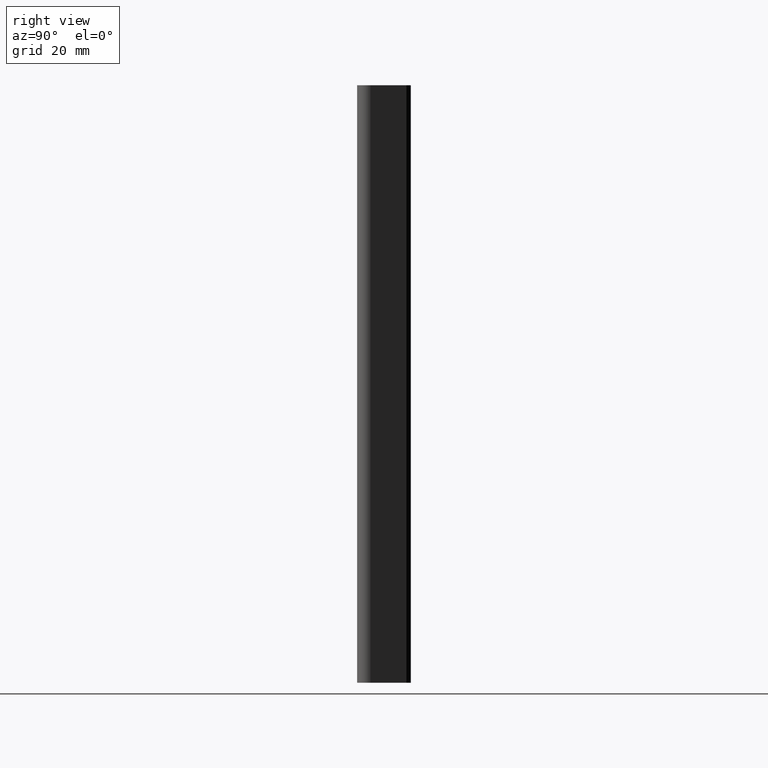
[diagram: clean part render]
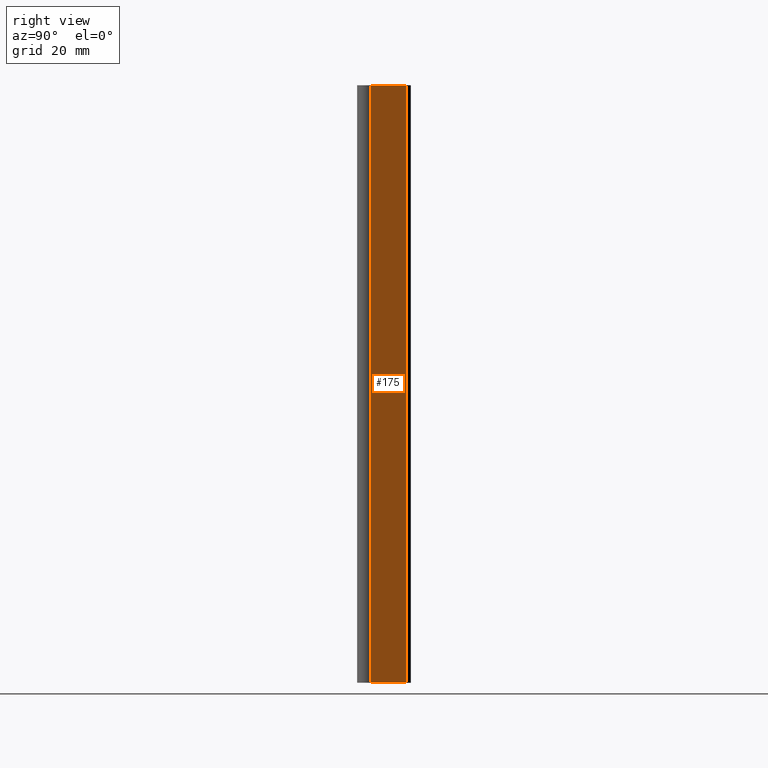
[diagram: same view with one face highlighted and labeled with its STEP entity id]
A machine part, right view. The second image highlights one B-rep face of the part: STEP entity #175.
In plain terms, the highlighted planar face has unit normal (0.866, 0.5, 0).
Its self-contained STEP definition (entity closure, byte-faithful):
#29=FACE_OUTER_BOUND('',#39,.T.);
#39=EDGE_LOOP('',(#127,#128,#129,#130));
#51=LINE('',#284,#67);
#52=LINE('',#287,#68);
#53=LINE('',#289,#69);
#54=LINE('',#290,#70);
#67=VECTOR('',#229,10.);
#68=VECTOR('',#232,10.);
#69=VECTOR('',#233,10.);
#70=VECTOR('',#234,10.);
#83=VERTEX_POINT('',#280);
#84=VERTEX_POINT('',#282);
#85=VERTEX_POINT('',#286);
#86=VERTEX_POINT('',#288);
#101=EDGE_CURVE('',#83,#84,#51,.T.);
#102=EDGE_CURVE('',#85,#83,#52,.T.);
#103=EDGE_CURVE('',#86,#84,#53,.T.);
#104=EDGE_CURVE('',#85,#86,#54,.T.);
#127=ORIENTED_EDGE('',*,*,#102,.T.);
#128=ORIENTED_EDGE('',*,*,#101,.T.);
#129=ORIENTED_EDGE('',*,*,#103,.F.);
#130=ORIENTED_EDGE('',*,*,#104,.F.);
#168=PLANE('',#201);
#175=ADVANCED_FACE('',(#29),#168,.T.);
#201=AXIS2_PLACEMENT_3D('',#285,#230,#231);
#229=DIRECTION('',(0.,0.,1.));
#230=DIRECTION('center_axis',(0.866025402866325,0.500000001590219,0.));
#231=DIRECTION('ref_axis',(-0.500000001590219,0.866025402866325,0.));
#232=DIRECTION('',(-0.500000001590219,0.866025402866325,0.));
#233=DIRECTION('',(-0.500000001590219,0.866025402866325,0.));
#234=DIRECTION('',(0.,0.,1.));
#280=CARTESIAN_POINT('',(59.2057713361858,16.5000001173165,0.));
#282=CARTESIAN_POINT('',(59.2057713361858,16.5000001173165,200.));
#284=CARTESIAN_POINT('',(59.2057713361858,16.5000001173165,0.));
#285=CARTESIAN_POINT('Origin',(66.1339745934621,4.50000012143695,0.));
#286=CARTESIAN_POINT('',(66.1339745934621,4.50000012143695,0.));
#287=CARTESIAN_POINT('',(66.1339745934621,4.50000012143695,0.));
#288=CARTESIAN_POINT('',(66.133974593462,4.50000012143695,200.));
#289=CARTESIAN_POINT('',(66.1339745934621,4.50000012143695,200.));
#290=CARTESIAN_POINT('',(66.1339745934621,4.50000012143695,0.));